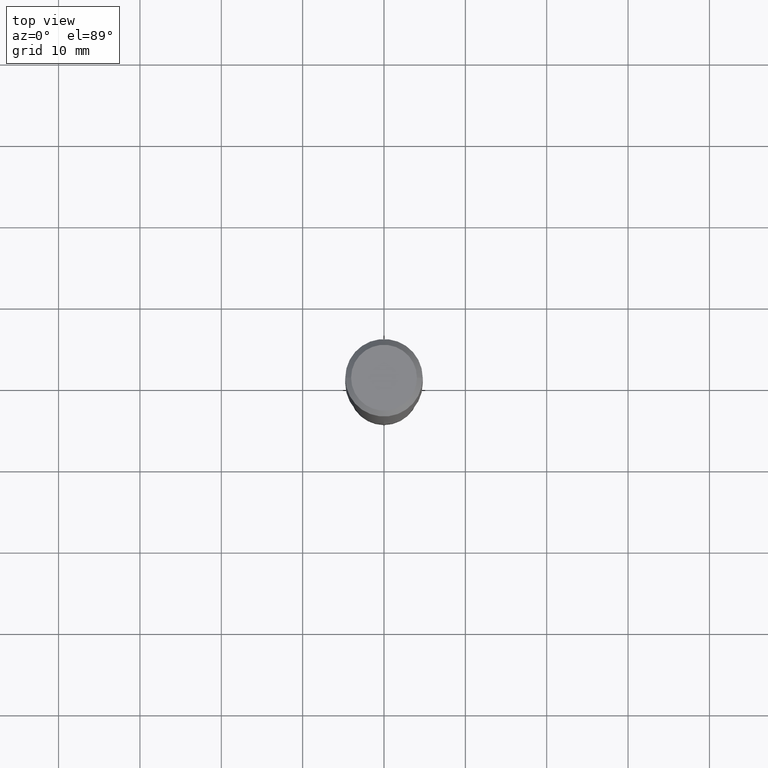
[diagram: clean part render]
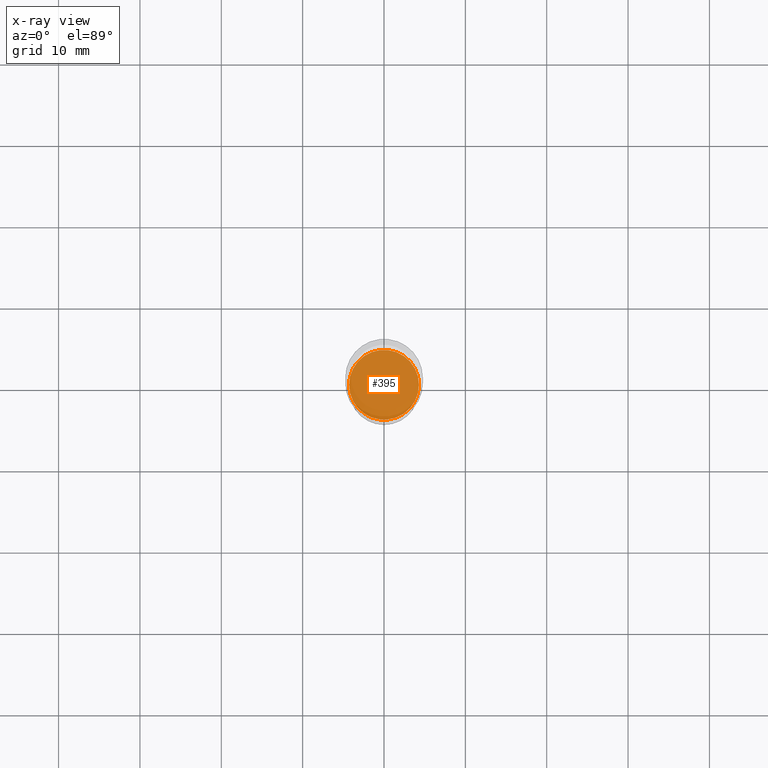
[diagram: x-ray — body ghosted, one internal face saturated and labeled with its STEP entity id]
A machine part, top view, then the same camera in x-ray: the body is ghosted and one INTERNAL B-rep face — a face not visible from any outside direction — is saturated and labeled: STEP entity #395.
In plain terms, the highlighted planar face has unit normal (-0, 0, 1).
Its self-contained STEP definition (entity closure, byte-faithful):
#46 = DIRECTION ( 'NONE',  ( 1.000000000000000000, -6.982962677686264344E-15, 0.000000000000000000 ) ) ;
#50 = DIRECTION ( 'NONE',  ( 1.000000000000000000, -6.982962677686264344E-15, 0.000000000000000000 ) ) ;
#120 = DIRECTION ( 'NONE',  ( -2.445468806185136597E-29, 3.491481338843145583E-15, 1.000000000000000000 ) ) ;
#132 = DIRECTION ( 'NONE',  ( -2.438088387897960049E-29, 3.491481338843145188E-15, 1.000000000000000000 ) ) ;
#139 = DIRECTION ( 'NONE',  ( 1.000000000000000000, -6.982962677686265922E-15, 4.876176775795935793E-29 ) ) ;
#141 = EDGE_LOOP ( 'NONE', ( #394, #183 ) ) ;
#143 = CARTESIAN_POINT ( 'NONE',  ( 0.1689999999999999836, -8.146324259788821375E-15, -1.995199999999999863 ) ) ;
#154 = VERTEX_POINT ( 'NONE', #143 ) ;
#172 = FACE_OUTER_BOUND ( 'NONE', #141, .T. ) ;
#183 = ORIENTED_EDGE ( 'NONE', *, *, #437, .F. ) ;
#204 = CARTESIAN_POINT ( 'NONE',  ( 4.879199362100584429E-29, -6.966203567259843153E-15, -1.995199999999999863 ) ) ;
#224 = AXIS2_PLACEMENT_3D ( 'NONE', #466, #132, #139 ) ;
#232 = CIRCLE ( 'NONE', #345, 0.1689999999999999836 ) ;
#248 = DIRECTION ( 'NONE',  ( -2.445468806185136597E-29, 3.491481338843145583E-15, 1.000000000000000000 ) ) ;
#251 = PLANE ( 'NONE',  #224 ) ;
#254 = CIRCLE ( 'NONE', #313, 0.1689999999999999836 ) ;
#305 = CARTESIAN_POINT ( 'NONE',  ( -0.1689999999999999836, -5.762737116651162360E-15, -1.995199999999999863 ) ) ;
#313 = AXIS2_PLACEMENT_3D ( 'NONE', #204, #120, #46 ) ;
#314 = CARTESIAN_POINT ( 'NONE',  ( 4.879199362100584429E-29, -6.966203567259843153E-15, -1.995199999999999863 ) ) ;
#345 = AXIS2_PLACEMENT_3D ( 'NONE', #314, #248, #50 ) ;
#356 = VERTEX_POINT ( 'NONE', #305 ) ;
#380 = EDGE_CURVE ( 'NONE', #154, #356, #254, .T. ) ;
#394 = ORIENTED_EDGE ( 'NONE', *, *, #380, .F. ) ;
#395 = ADVANCED_FACE ( 'NONE', ( #172 ), #251, .F. ) ;
#437 = EDGE_CURVE ( 'NONE', #356, #154, #232, .T. ) ;
#466 = CARTESIAN_POINT ( 'NONE',  ( 4.879199362100584429E-29, -6.966203567259843153E-15, -1.995199999999999863 ) ) ;